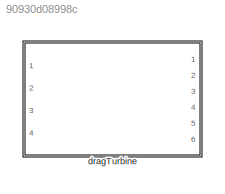
MODEL slx_90930d08998c
KIND library
CONFIG AbsTol = auto
CONFIG EnableMultiTasking = off
CONFIG FixedStep = auto
CONFIG MaxStep = auto
CONFIG MinStep = auto
CONFIG RelTol = 1e-3
CONFIG SampleTimeConstraint = Unconstrained
CONFIG SolverName = VariableStepAuto
CONFIG StartTime = 0.0
CONFIG StopTime = 10.0
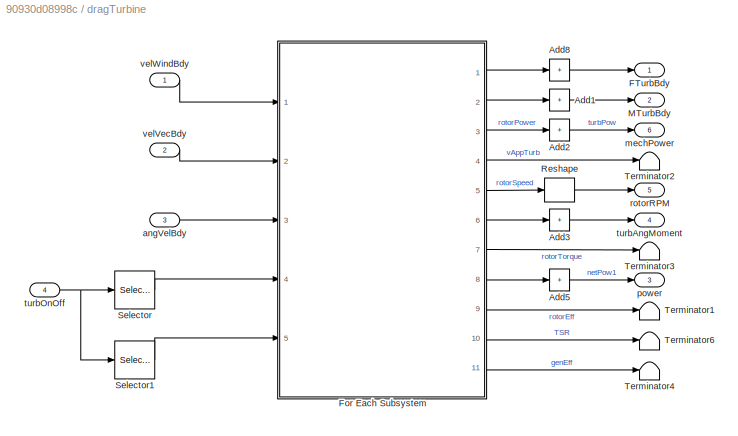
BLOCK [SubSystem] dragTurbine
  Ports = [4, 6]
  RequestExecContextInheritance = off
  TreatAsAtomicUnit = on
BLOCK [Sum] dragTurbine/Add1
  CollapseDim = 2
  CollapseMode = Specified dimension
  IconShape = rectangular
  Inputs = 1
  Ports = [1, 1]
BLOCK [Sum] dragTurbine/Add2
  CollapseDim = 2
  CollapseMode = Specified dimension
  IconShape = rectangular
  Inputs = 1
  Ports = [1, 1]
BLOCK [Sum] dragTurbine/Add3
  CollapseDim = 2
  CollapseMode = Specified dimension
  IconShape = rectangular
  Inputs = 1
  Ports = [1, 1]
BLOCK [Sum] dragTurbine/Add5
  CollapseDim = 2
  IconShape = rectangular
  Inputs = 1
  Ports = [1, 1]
BLOCK [Sum] dragTurbine/Add8
  CollapseDim = 2
  CollapseMode = Specified dimension
  IconShape = rectangular
  Inputs = 1
  Ports = [1, 1]
BLOCK [Outport] dragTurbine/FTurbBdy
  PortDimensions = [3,1]
  VectorParamsAs1DForOutWhenUnconnected = off
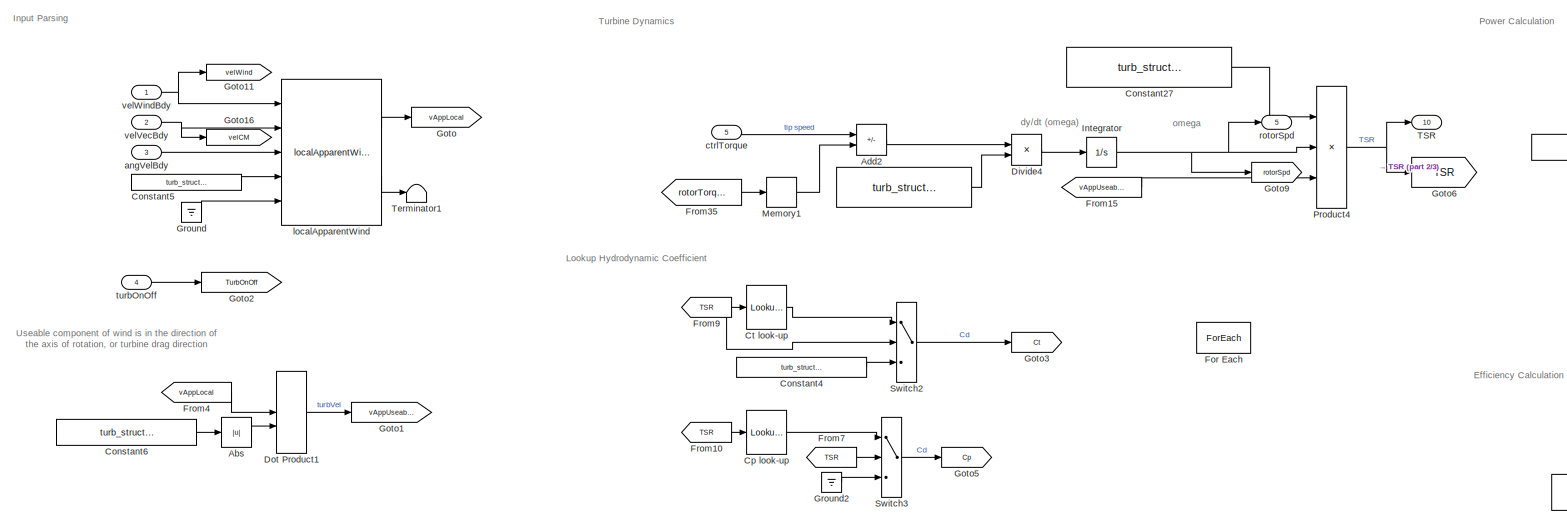
[diagram: dragTurbine/For Each Subsystem - part 1/3, top left region]
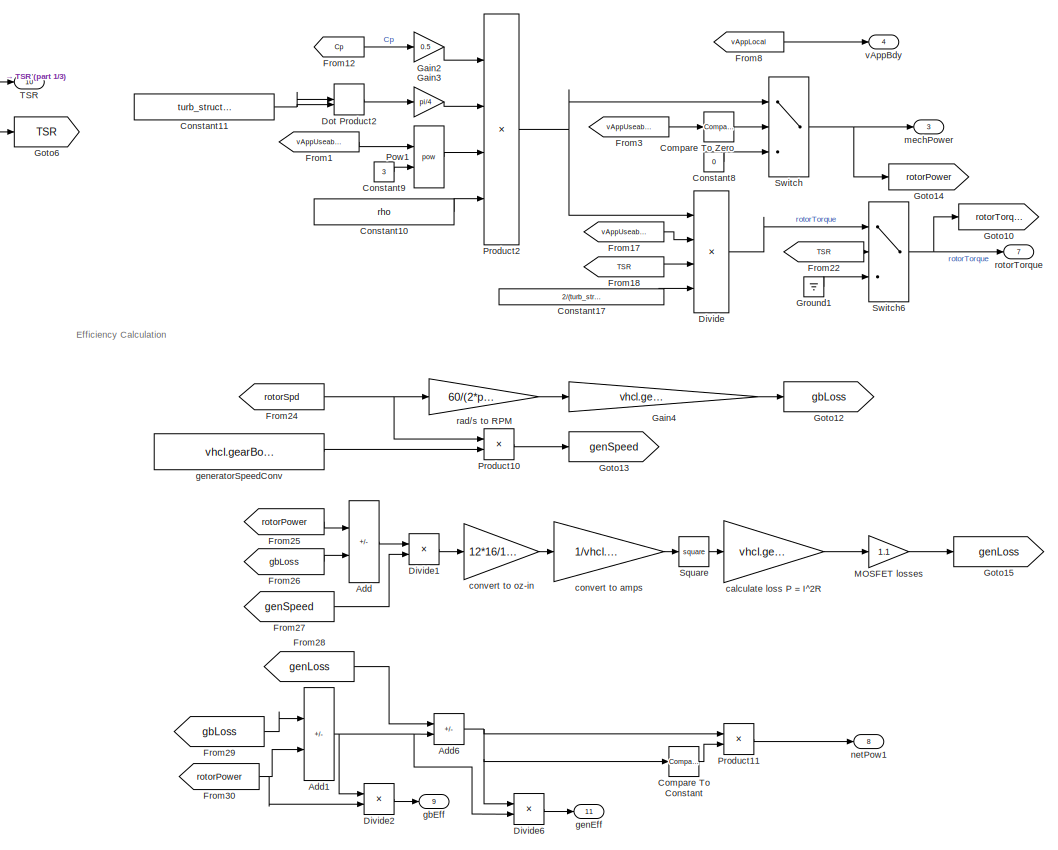
[diagram: dragTurbine/For Each Subsystem - part 2/3, right side, full height]
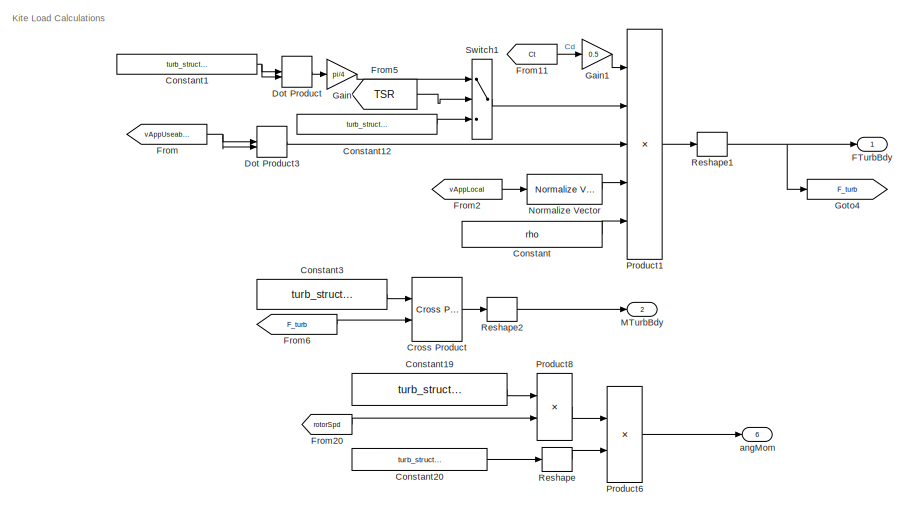
[diagram: dragTurbine/For Each Subsystem - part 3/3, bottom left region]
BLOCK [SubSystem] dragTurbine/For Each Subsystem
  MinAlgLoopOccurrences = on
  Ports = [5, 11]
  RequestExecContextInheritance = off
  TreatAsAtomicUnit = on
BLOCK [Constant] dragTurbine/For Each Subsystem/ 
  Value = turb_struct.momentOfInertia
BLOCK [Abs] dragTurbine/For Each Subsystem/Abs
  SaturateOnIntegerOverflow = off
BLOCK [Sum] dragTurbine/For Each Subsystem/Add
  IconShape = rectangular
  Inputs = +-
  Ports = [2, 1]
BLOCK [Sum] dragTurbine/For Each Subsystem/Add1
  IconShape = rectangular
  Inputs = -+
  Ports = [2, 1]
BLOCK [Sum] dragTurbine/For Each Subsystem/Add2
  IconShape = rectangular
  Inputs = -+
  Ports = [2, 1]
BLOCK [Sum] dragTurbine/For Each Subsystem/Add6
  IconShape = rectangular
  Inputs = -+
  Ports = [2, 1]
BLOCK [Reference] dragTurbine/For Each Subsystem/Compare To Constant  REF=simulink/Logic and Bit
Operations/Compare
To Constant
  Ports = [1, 1]
  SourceBlock = simulink/Logic and Bit\nOperations/Compare\nTo Constant
  SourceProductBaseCode = SL
  SourceType = Compare To Constant
BLOCK [Reference] dragTurbine/For Each Subsystem/Compare To Zero  REF=simulink/Logic and Bit
Operations/Compare
To Zero
  Ports = [1, 1]
  SourceBlock = simulink/Logic and Bit\nOperations/Compare\nTo Zero
  SourceProductBaseCode = SL
  SourceType = Compare To Zero
BLOCK [Constant] dragTurbine/For Each Subsystem/Constant
  Value = rho
BLOCK [Constant] dragTurbine/For Each Subsystem/Constant1
  Value = turb_struct.diameter
  VectorParams1D = off
BLOCK [Constant] dragTurbine/For Each Subsystem/Constant10
  Value = rho
BLOCK [Constant] dragTurbine/For Each Subsystem/Constant11
  Value = turb_struct.diameter
  VectorParams1D = off
BLOCK [Constant] dragTurbine/For Each Subsystem/Constant12
  Value = turb_struct.staticArea
  VectorParams1D = off
BLOCK [Constant] dragTurbine/For Each Subsystem/Constant17
  Value = 2/(turb_struct.diameter)
BLOCK [Constant] dragTurbine/For Each Subsystem/Constant19
  Value = turb_struct.momentOfInertia
BLOCK [Constant] dragTurbine/For Each Subsystem/Constant20
  Value = turb_struct.axisUnitVec
BLOCK [Constant] dragTurbine/For Each Subsystem/Constant27
  Value = turb_struct.diameter/2
BLOCK [Constant] dragTurbine/For Each Subsystem/Constant3
  Value = turb_struct.momentArm
BLOCK [Constant] dragTurbine/For Each Subsystem/Constant4
  Value = turb_struct.staticCD
BLOCK [Constant] dragTurbine/For Each Subsystem/Constant5
  Value = turb_struct.attachPtVec
BLOCK [Constant] dragTurbine/For Each Subsystem/Constant6
  Value = turb_struct.axisUnitVec
BLOCK [Constant] dragTurbine/For Each Subsystem/Constant8
  Value = 0
BLOCK [Constant] dragTurbine/For Each Subsystem/Constant9
  Value = 3
BLOCK [Lookup_n-D] dragTurbine/For Each Subsystem/Cp look-up
  BreakpointsForDimension1 = turb_struct.RPMref
  InputPortMap = u0
  InternalRulePriority = Speed
  NumberOfTableDimensions = 1
  Ports = [1, 1]
  RndMeth = Simplest
  Table = turb_struct.CpLookup
BLOCK [Reference] dragTurbine/For Each Subsystem/Cross Product  REF=vrlib/Utilities/Cross Product
  Ports = [2, 1]
  SourceBlock = vrlib/Utilities/Cross Product
  SourceProductBaseCode = SL
  SourceType = Cross Product
BLOCK [Lookup_n-D] dragTurbine/For Each Subsystem/Ct look-up
  BreakpointsForDimension1 = turb_struct.RPMref
  InputPortMap = u0
  InternalRulePriority = Speed
  NumberOfTableDimensions = 1
  Ports = [1, 1]
  RndMeth = Simplest
  Table = turb_struct.CtLookup
BLOCK [Product] dragTurbine/For Each Subsystem/Divide
  Inputs = *///
  Ports = [4, 1]
BLOCK [Product] dragTurbine/For Each Subsystem/Divide1
  Inputs = */
  Ports = [2, 1]
BLOCK [Product] dragTurbine/For Each Subsystem/Divide2
  Inputs = */
  Ports = [2, 1]
BLOCK [Product] dragTurbine/For Each Subsystem/Divide4
  Inputs = */
  Ports = [2, 1]
BLOCK [Product] dragTurbine/For Each Subsystem/Divide6
  Inputs = */
  Ports = [2, 1]
BLOCK [DotProduct] dragTurbine/For Each Subsystem/Dot Product
  OutDataTypeStr = Inherit: Inherit via internal rule
BLOCK [DotProduct] dragTurbine/For Each Subsystem/Dot Product1
  OutDataTypeStr = Inherit: Inherit via internal rule
BLOCK [DotProduct] dragTurbine/For Each Subsystem/Dot Product2
  OutDataTypeStr = Inherit: Inherit via internal rule
BLOCK [DotProduct] dragTurbine/For Each Subsystem/Dot Product3
  OutDataTypeStr = Inherit: Inherit via internal rule
BLOCK [Outport] dragTurbine/For Each Subsystem/FTurbBdy
  ConcatenationDimension = 2
  PortDimensions = [3,1]
  VectorParamsAs1DForOutWhenUnconnected = off
BLOCK [ForEach] dragTurbine/For Each Subsystem/For Each
  DisableCoverage = on
  IterateSubsysMaskParameter = off,on,off
  Ports = []
  SubsysMaskParameterIterationDimension = 1,2,1
  SubsysMaskParameterIterationStepSize = 1,1,1
BLOCK [From] dragTurbine/For Each Subsystem/From
  GotoTag = vAppUseable
BLOCK [From] dragTurbine/For Each Subsystem/From1
  GotoTag = vAppUseable
BLOCK [From] dragTurbine/For Each Subsystem/From10
  GotoTag = TSR
BLOCK [From] dragTurbine/For Each Subsystem/From11
  GotoTag = Ct
BLOCK [From] dragTurbine/For Each Subsystem/From12
  GotoTag = Cp
BLOCK [From] dragTurbine/For Each Subsystem/From15
  GotoTag = vAppUseable
BLOCK [From] dragTurbine/For Each Subsystem/From17
  GotoTag = vAppUseable
BLOCK [From] dragTurbine/For Each Subsystem/From18
  GotoTag = TSR
BLOCK [From] dragTurbine/For Each Subsystem/From2
  GotoTag = vAppLocal
BLOCK [From] dragTurbine/For Each Subsystem/From20
  GotoTag = rotorSpd
BLOCK [From] dragTurbine/For Each Subsystem/From22
  GotoTag = TSR
BLOCK [From] dragTurbine/For Each Subsystem/From24
  GotoTag = rotorSpd
BLOCK [From] dragTurbine/For Each Subsystem/From25
  GotoTag = rotorPower
BLOCK [From] dragTurbine/For Each Subsystem/From26
  GotoTag = gbLoss
BLOCK [From] dragTurbine/For Each Subsystem/From27
  GotoTag = genSpeed
BLOCK [From] dragTurbine/For Each Subsystem/From28
  GotoTag = genLoss
BLOCK [From] dragTurbine/For Each Subsystem/From29
  GotoTag = gbLoss
BLOCK [From] dragTurbine/For Each Subsystem/From3
  GotoTag = vAppUseable
BLOCK [From] dragTurbine/For Each Subsystem/From30
  GotoTag = rotorPower
BLOCK [From] dragTurbine/For Each Subsystem/From35
  GotoTag = rotorTorque
BLOCK [From] dragTurbine/For Each Subsystem/From4
  GotoTag = vAppLocal
BLOCK [From] dragTurbine/For Each Subsystem/From5
  GotoTag = TSR
BLOCK [From] dragTurbine/For Each Subsystem/From6
  GotoTag = F_turb
BLOCK [From] dragTurbine/For Each Subsystem/From7
  GotoTag = TSR
BLOCK [From] dragTurbine/For Each Subsystem/From8
  GotoTag = vAppLocal
BLOCK [From] dragTurbine/For Each Subsystem/From9
  GotoTag = TSR
BLOCK [Gain] dragTurbine/For Each Subsystem/Gain
  Gain = pi/4
BLOCK [Gain] dragTurbine/For Each Subsystem/Gain1
  Gain = 0.5
BLOCK [Gain] dragTurbine/For Each Subsystem/Gain2
  Gain = 0.5
BLOCK [Gain] dragTurbine/For Each Subsystem/Gain3
  Gain = pi/4
BLOCK [Gain] dragTurbine/For Each Subsystem/Gain4
  Gain = vhcl.gearBoxLoss.Value
BLOCK [Goto] dragTurbine/For Each Subsystem/Goto
  GotoTag = vAppLocal
BLOCK [Goto] dragTurbine/For Each Subsystem/Goto1
  GotoTag = vAppUseable
BLOCK [Goto] dragTurbine/For Each Subsystem/Goto10
  GotoTag = rotorTorque
BLOCK [Goto] dragTurbine/For Each Subsystem/Goto11
  Commented = on
  GotoTag = velWind
BLOCK [Goto] dragTurbine/For Each Subsystem/Goto12
  GotoTag = gbLoss
BLOCK [Goto] dragTurbine/For Each Subsystem/Goto13
  GotoTag = genSpeed
BLOCK [Goto] dragTurbine/For Each Subsystem/Goto14
  GotoTag = rotorPower
BLOCK [Goto] dragTurbine/For Each Subsystem/Goto15
  GotoTag = genLoss
BLOCK [Goto] dragTurbine/For Each Subsystem/Goto16
  Commented = on
  GotoTag = velCM
BLOCK [Goto] dragTurbine/For Each Subsystem/Goto2
  Commented = on
  GotoTag = TurbOnOff
BLOCK [Goto] dragTurbine/For Each Subsystem/Goto3
  GotoTag = Ct
BLOCK [Goto] dragTurbine/For Each Subsystem/Goto4
  GotoTag = F_turb
BLOCK [Goto] dragTurbine/For Each Subsystem/Goto5
  GotoTag = Cp
BLOCK [Goto] dragTurbine/For Each Subsystem/Goto6
  GotoTag = TSR
BLOCK [Goto] dragTurbine/For Each Subsystem/Goto9
  GotoTag = rotorSpd
BLOCK [Ground] dragTurbine/For Each Subsystem/Ground
BLOCK [Ground] dragTurbine/For Each Subsystem/Ground1
BLOCK [Ground] dragTurbine/For Each Subsystem/Ground2
BLOCK [Integrator] dragTurbine/For Each Subsystem/Integrator
  InitialCondition = turb_struct.optTSR*(-vhcl.initVelVecBdy.Value(1)+flwSpd)/(turb_struct.diameter/2)
  Ports = [1, 1]
BLOCK [Gain] dragTurbine/For Each Subsystem/MOSFET losses
  Gain = 1.1
BLOCK [Outport] dragTurbine/For Each Subsystem/MTurbBdy
  ConcatenationDimension = 2
  Port = 2
  PortDimensions = [3,1]
  VectorParamsAs1DForOutWhenUnconnected = off
BLOCK [Memory] dragTurbine/For Each Subsystem/Memory1
  InitialCondition = 10
BLOCK [Reference] dragTurbine/For Each Subsystem/Normalize Vector  REF=vrlib/Utilities/Normalize Vector
  Ports = [1, 1]
  SourceBlock = vrlib/Utilities/Normalize Vector
  SourceProductBaseCode = SL
  SourceType = Normalize Vector
BLOCK [Math] dragTurbine/For Each Subsystem/Pow1
  Operator = pow
  Ports = [2, 1]
  RndMeth = Zero
  SignedPower = on
BLOCK [Product] dragTurbine/For Each Subsystem/Product1
  Inputs = 5
  Ports = [5, 1]
BLOCK [Product] dragTurbine/For Each Subsystem/Product10
  Ports = [2, 1]
BLOCK [Product] dragTurbine/For Each Subsystem/Product11
  Ports = [2, 1]
BLOCK [Product] dragTurbine/For Each Subsystem/Product2
  Inputs = 4
  Ports = [4, 1]
BLOCK [Product] dragTurbine/For Each Subsystem/Product4
  Inputs = **/
  Ports = [3, 1]
BLOCK [Product] dragTurbine/For Each Subsystem/Product6
  Ports = [2, 1]
BLOCK [Product] dragTurbine/For Each Subsystem/Product8
  Ports = [2, 1]
BLOCK [Reshape] dragTurbine/For Each Subsystem/Reshape
  OutputDimensionality = Column vector (2-D)
  Ports = [1, 1]
BLOCK [Reshape] dragTurbine/For Each Subsystem/Reshape1
  OutputDimensionality = Column vector (2-D)
  Ports = [1, 1]
BLOCK [Reshape] dragTurbine/For Each Subsystem/Reshape2
  OutputDimensionality = Column vector (2-D)
  Ports = [1, 1]
BLOCK [Math] dragTurbine/For Each Subsystem/Square
  Operator = square
  Ports = [1, 1]
BLOCK [Switch] dragTurbine/For Each Subsystem/Switch
  Criteria = u2 > Threshold
  InputSameDT = off
  SaturateOnIntegerOverflow = off
BLOCK [Switch] dragTurbine/For Each Subsystem/Switch1
  Criteria = u2 > Threshold
  InputSameDT = off
  SaturateOnIntegerOverflow = off
  Threshold = 0.1
BLOCK [Switch] dragTurbine/For Each Subsystem/Switch2
  Criteria = u2 > Threshold
  InputSameDT = off
  SaturateOnIntegerOverflow = off
  Threshold = 0.15
BLOCK [Switch] dragTurbine/For Each Subsystem/Switch3
  Criteria = u2 > Threshold
  InputSameDT = off
  SaturateOnIntegerOverflow = off
BLOCK [Switch] dragTurbine/For Each Subsystem/Switch6
  Criteria = u2 > Threshold
  InputSameDT = off
  SaturateOnIntegerOverflow = off
  Threshold = 0.1
BLOCK [Outport] dragTurbine/For Each Subsystem/TSR
  ConcatenationDimension = 2
  Port = 10
BLOCK [Terminator] dragTurbine/For Each Subsystem/Terminator1
BLOCK [Outport] dragTurbine/For Each Subsystem/angMom
  ConcatenationDimension = 2
  Port = 6
BLOCK [Inport] dragTurbine/For Each Subsystem/angVelBdy
  Port = 3
BLOCK [Gain] dragTurbine/For Each Subsystem/calculate loss P = I^2R
  Gain = vhcl.genR.Value
BLOCK [Gain] dragTurbine/For Each Subsystem/convert to amps
  Gain = 1/vhcl.genKt.Value
BLOCK [Gain] dragTurbine/For Each Subsystem/convert to oz-in
  Gain = 12*16/1.3558
BLOCK [Inport] dragTurbine/For Each Subsystem/ctrlTorque
  Partition = on
  PartitionDimension = 1
  PartitionOffset = 0
  PartitionWidth = 1
  Port = 5
BLOCK [Outport] dragTurbine/For Each Subsystem/gbEff
  ConcatenationDimension = 2
  Port = 9
BLOCK [Outport] dragTurbine/For Each Subsystem/genEff
  ConcatenationDimension = 2
  Port = 11
BLOCK [Constant] dragTurbine/For Each Subsystem/generatorSpeedConv
  Value = vhcl.gearBoxRatio.Value
BLOCK [Reference] dragTurbine/For Each Subsystem/localApparentWind  REF=localApparentWind_ul/localApparentWind
  Ports = [5, 2]
  SourceBlock = localApparentWind_ul/localApparentWind
  SourceType = SubSystem
BLOCK [Outport] dragTurbine/For Each Subsystem/mechPower
  ConcatenationDimension = 2
  Port = 3
  PortDimensions = [1,1]
  VectorParamsAs1DForOutWhenUnconnected = off
BLOCK [Outport] dragTurbine/For Each Subsystem/netPow1
  ConcatenationDimension = 2
  Port = 8
BLOCK [Gain] dragTurbine/For Each Subsystem/rad//s to RPM
  Gain = 60/(2*pi)
BLOCK [Outport] dragTurbine/For Each Subsystem/rotorSpd
  ConcatenationDimension = 2
  Port = 5
BLOCK [Outport] dragTurbine/For Each Subsystem/rotorTorque
  ConcatenationDimension = 2
  Port = 7
BLOCK [Inport] dragTurbine/For Each Subsystem/turbOnOff
  Port = 4
BLOCK [Outport] dragTurbine/For Each Subsystem/vAppBdy
  ConcatenationDimension = 2
  Port = 4
  PortDimensions = [3,1]
  VectorParamsAs1DForOutWhenUnconnected = off
BLOCK [Inport] dragTurbine/For Each Subsystem/velVecBdy
  Port = 2
BLOCK [Inport] dragTurbine/For Each Subsystem/velWindBdy
  Partition = on
  PartitionDimension = 2
  PartitionOffset = 0
  PartitionWidth = 1
BLOCK [Outport] dragTurbine/MTurbBdy
  Port = 2
  PortDimensions = [3,1]
  VectorParamsAs1DForOutWhenUnconnected = off
BLOCK [Reshape] dragTurbine/Reshape
  OutputDimensionality = Column vector (2-D)
  Ports = [1, 1]
BLOCK [Selector] dragTurbine/Selector
  IndexOptions = Index vector (dialog)
  Indices = 1
  InputPortWidth = 1+vhcl.numTurbines.Value
  OutputSizes = 1
  Ports = [1, 1]
BLOCK [Selector] dragTurbine/Selector1
  IndexOptions = Starting index (dialog)
  Indices = 2
  InputPortWidth = 1+vhcl.numTurbines.Value
  OutputSizes = vhcl.numTurbines.Value
  Ports = [1, 1]
BLOCK [Terminator] dragTurbine/Terminator1
BLOCK [Terminator] dragTurbine/Terminator2
BLOCK [Terminator] dragTurbine/Terminator3
BLOCK [Terminator] dragTurbine/Terminator4
BLOCK [Terminator] dragTurbine/Terminator6
BLOCK [Inport] dragTurbine/angVelBdy
  Port = 3
BLOCK [Outport] dragTurbine/mechPower
  Port = 6
BLOCK [Outport] dragTurbine/power
  Port = 3
  PortDimensions = [1,1]
  VectorParamsAs1DForOutWhenUnconnected = off
BLOCK [Outport] dragTurbine/rotorRPM
  Port = 5
  VectorParamsAs1DForOutWhenUnconnected = off
BLOCK [Outport] dragTurbine/turbAngMoment
  Port = 4
  PortDimensions = [3,1]
  VectorParamsAs1DForOutWhenUnconnected = off
BLOCK [Inport] dragTurbine/turbOnOff
  Port = 4
BLOCK [Inport] dragTurbine/velVecBdy
  Port = 2
BLOCK [Inport] dragTurbine/velWindBdy
ANNOTATION dragTurbine/For Each Subsystem: Efficiency Calculation
ANNOTATION dragTurbine/For Each Subsystem: Input Parsing
ANNOTATION dragTurbine/For Each Subsystem: Kite Load Calculations
ANNOTATION dragTurbine/For Each Subsystem: Lookup Hydrodynamic Coefficient
ANNOTATION dragTurbine/For Each Subsystem: Power Calculation
ANNOTATION dragTurbine/For Each Subsystem: Turbine Dynamics
ANNOTATION dragTurbine/For Each Subsystem: Useable component of wind is in the direction of the axis of rotation, or turbine drag direction
ANNOTATION dragTurbine/For Each Subsystem: dy/dt (omega)
ANNOTATION dragTurbine/For Each Subsystem: omega
LINE dragTurbine/Add1:1 -> dragTurbine/MTurbBdy:1
LINE dragTurbine/Add2:1 -> dragTurbine/mechPower:1
LINE dragTurbine/Add3:1 -> dragTurbine/turbAngMoment:1
LINE dragTurbine/Add5:1 -> dragTurbine/power:1
LINE dragTurbine/Add8:1 -> dragTurbine/FTurbBdy:1
LINE dragTurbine/For Each Subsystem/ :1 -> dragTurbine/For Each Subsystem/Divide4:2
LINE dragTurbine/For Each Subsystem/Abs:1 -> dragTurbine/For Each Subsystem/Dot Product1:2
NET dragTurbine/For Each Subsystem/Add1:1 -> dragTurbine/For Each Subsystem/Add6:2, dragTurbine/For Each Subsystem/Divide2:1, dragTurbine/For Each Subsystem/Divide6:2
LINE dragTurbine/For Each Subsystem/Add2:1 -> dragTurbine/For Each Subsystem/Divide4:1
NET dragTurbine/For Each Subsystem/Add6:1 -> dragTurbine/For Each Subsystem/Compare To Constant:1, dragTurbine/For Each Subsystem/Divide6:1, dragTurbine/For Each Subsystem/Product11:1
LINE dragTurbine/For Each Subsystem/Add:1 -> dragTurbine/For Each Subsystem/Divide1:1
LINE dragTurbine/For Each Subsystem/Compare To Constant:1 -> dragTurbine/For Each Subsystem/Product11:2
LINE dragTurbine/For Each Subsystem/Compare To Zero:1 -> dragTurbine/For Each Subsystem/Switch:2
LINE dragTurbine/For Each Subsystem/Constant10:1 -> dragTurbine/For Each Subsystem/Product2:4
NET dragTurbine/For Each Subsystem/Constant11:1 -> dragTurbine/For Each Subsystem/Dot Product2:1, dragTurbine/For Each Subsystem/Dot Product2:2
LINE dragTurbine/For Each Subsystem/Constant12:1 -> dragTurbine/For Each Subsystem/Switch1:3
LINE dragTurbine/For Each Subsystem/Constant17:1 -> dragTurbine/For Each Subsystem/Divide:4
LINE dragTurbine/For Each Subsystem/Constant19:1 -> dragTurbine/For Each Subsystem/Product8:1
NET dragTurbine/For Each Subsystem/Constant1:1 -> dragTurbine/For Each Subsystem/Dot Product:1, dragTurbine/For Each Subsystem/Dot Product:2
LINE dragTurbine/For Each Subsystem/Constant20:1 -> dragTurbine/For Each Subsystem/Reshape:1
LINE dragTurbine/For Each Subsystem/Constant27:1 -> dragTurbine/For Each Subsystem/Product4:1
LINE dragTurbine/For Each Subsystem/Constant3:1 -> dragTurbine/For Each Subsystem/Cross Product:1
LINE dragTurbine/For Each Subsystem/Constant4:1 -> dragTurbine/For Each Subsystem/Switch2:3
LINE dragTurbine/For Each Subsystem/Constant5:1 -> dragTurbine/For Each Subsystem/localApparentWind:4
LINE dragTurbine/For Each Subsystem/Constant6:1 -> dragTurbine/For Each Subsystem/Abs:1
LINE dragTurbine/For Each Subsystem/Constant8:1 -> dragTurbine/For Each Subsystem/Switch:3
LINE dragTurbine/For Each Subsystem/Constant9:1 -> dragTurbine/For Each Subsystem/Pow1:2
LINE dragTurbine/For Each Subsystem/Constant:1 -> dragTurbine/For Each Subsystem/Product1:5
LINE dragTurbine/For Each Subsystem/Cp look-up:1 -> dragTurbine/For Each Subsystem/Switch3:1
LINE dragTurbine/For Each Subsystem/Cross Product:1 -> dragTurbine/For Each Subsystem/Reshape2:1
LINE dragTurbine/For Each Subsystem/Ct look-up:1 -> dragTurbine/For Each Subsystem/Switch2:1
LINE dragTurbine/For Each Subsystem/Divide1:1 -> dragTurbine/For Each Subsystem/convert to oz-in:1
LINE dragTurbine/For Each Subsystem/Divide2:1 -> dragTurbine/For Each Subsystem/gbEff:1
LINE dragTurbine/For Each Subsystem/Divide4:1 -> dragTurbine/For Each Subsystem/Integrator:1
LINE dragTurbine/For Each Subsystem/Divide6:1 -> dragTurbine/For Each Subsystem/genEff:1
LINE dragTurbine/For Each Subsystem/Divide:1 -> dragTurbine/For Each Subsystem/Switch6:1
LINE dragTurbine/For Each Subsystem/Dot Product1:1 -> dragTurbine/For Each Subsystem/Goto1:1
LINE dragTurbine/For Each Subsystem/Dot Product2:1 -> dragTurbine/For Each Subsystem/Gain3:1
LINE dragTurbine/For Each Subsystem/Dot Product3:1 -> dragTurbine/For Each Subsystem/Product1:3
LINE dragTurbine/For Each Subsystem/Dot Product:1 -> dragTurbine/For Each Subsystem/Gain:1
LINE dragTurbine/For Each Subsystem/From10:1 -> dragTurbine/For Each Subsystem/Cp look-up:1
LINE dragTurbine/For Each Subsystem/From11:1 -> dragTurbine/For Each Subsystem/Gain1:1
LINE dragTurbine/For Each Subsystem/From12:1 -> dragTurbine/For Each Subsystem/Gain2:1
LINE dragTurbine/For Each Subsystem/From15:1 -> dragTurbine/For Each Subsystem/Product4:3
LINE dragTurbine/For Each Subsystem/From17:1 -> dragTurbine/For Each Subsystem/Divide:2
LINE dragTurbine/For Each Subsystem/From18:1 -> dragTurbine/For Each Subsystem/Divide:3
LINE dragTurbine/For Each Subsystem/From1:1 -> dragTurbine/For Each Subsystem/Pow1:1
LINE dragTurbine/For Each Subsystem/From20:1 -> dragTurbine/For Each Subsystem/Product8:2
LINE dragTurbine/For Each Subsystem/From22:1 -> dragTurbine/For Each Subsystem/Switch6:2
NET dragTurbine/For Each Subsystem/From24:1 -> dragTurbine/For Each Subsystem/Product10:1, dragTurbine/For Each Subsystem/rad//s to RPM:1
LINE dragTurbine/For Each Subsystem/From25:1 -> dragTurbine/For Each Subsystem/Add:1
LINE dragTurbine/For Each Subsystem/From26:1 -> dragTurbine/For Each Subsystem/Add:2
LINE dragTurbine/For Each Subsystem/From27:1 -> dragTurbine/For Each Subsystem/Divide1:2
LINE dragTurbine/For Each Subsystem/From28:1 -> dragTurbine/For Each Subsystem/Add6:1
LINE dragTurbine/For Each Subsystem/From29:1 -> dragTurbine/For Each Subsystem/Add1:1
LINE dragTurbine/For Each Subsystem/From2:1 -> dragTurbine/For Each Subsystem/Normalize Vector:1
NET dragTurbine/For Each Subsystem/From30:1 -> dragTurbine/For Each Subsystem/Add1:2, dragTurbine/For Each Subsystem/Divide2:2
LINE dragTurbine/For Each Subsystem/From35:1 -> dragTurbine/For Each Subsystem/Memory1:1
LINE dragTurbine/For Each Subsystem/From3:1 -> dragTurbine/For Each Subsystem/Compare To Zero:1
LINE dragTurbine/For Each Subsystem/From4:1 -> dragTurbine/For Each Subsystem/Dot Product1:1
LINE dragTurbine/For Each Subsystem/From5:1 -> dragTurbine/For Each Subsystem/Switch1:2
LINE dragTurbine/For Each Subsystem/From6:1 -> dragTurbine/For Each Subsystem/Cross Product:2
LINE dragTurbine/For Each Subsystem/From7:1 -> dragTurbine/For Each Subsystem/Switch3:2
LINE dragTurbine/For Each Subsystem/From8:1 -> dragTurbine/For Each Subsystem/vAppBdy:1
NET dragTurbine/For Each Subsystem/From9:1 -> dragTurbine/For Each Subsystem/Ct look-up:1, dragTurbine/For Each Subsystem/Switch2:2
NET dragTurbine/For Each Subsystem/From:1 -> dragTurbine/For Each Subsystem/Dot Product3:1, dragTurbine/For Each Subsystem/Dot Product3:2
LINE dragTurbine/For Each Subsystem/Gain1:1 -> dragTurbine/For Each Subsystem/Product1:1
LINE dragTurbine/For Each Subsystem/Gain2:1 -> dragTurbine/For Each Subsystem/Product2:1
LINE dragTurbine/For Each Subsystem/Gain3:1 -> dragTurbine/For Each Subsystem/Product2:2
LINE dragTurbine/For Each Subsystem/Gain4:1 -> dragTurbine/For Each Subsystem/Goto12:1
LINE dragTurbine/For Each Subsystem/Gain:1 -> dragTurbine/For Each Subsystem/Switch1:1
LINE dragTurbine/For Each Subsystem/Ground1:1 -> dragTurbine/For Each Subsystem/Switch6:3
LINE dragTurbine/For Each Subsystem/Ground2:1 -> dragTurbine/For Each Subsystem/Switch3:3
LINE dragTurbine/For Each Subsystem/Ground:1 -> dragTurbine/For Each Subsystem/localApparentWind:5
NET dragTurbine/For Each Subsystem/Integrator:1 -> dragTurbine/For Each Subsystem/Goto9:1, dragTurbine/For Each Subsystem/Product4:2, dragTurbine/For Each Subsystem/rotorSpd:1
LINE dragTurbine/For Each Subsystem/MOSFET losses:1 -> dragTurbine/For Each Subsystem/Goto15:1
LINE dragTurbine/For Each Subsystem/Memory1:1 -> dragTurbine/For Each Subsystem/Add2:2
LINE dragTurbine/For Each Subsystem/Normalize Vector:1 -> dragTurbine/For Each Subsystem/Product1:4
LINE dragTurbine/For Each Subsystem/Pow1:1 -> dragTurbine/For Each Subsystem/Product2:3
LINE dragTurbine/For Each Subsystem/Product10:1 -> dragTurbine/For Each Subsystem/Goto13:1
LINE dragTurbine/For Each Subsystem/Product11:1 -> dragTurbine/For Each Subsystem/netPow1:1
LINE dragTurbine/For Each Subsystem/Product1:1 -> dragTurbine/For Each Subsystem/Reshape1:1
NET dragTurbine/For Each Subsystem/Product2:1 -> dragTurbine/For Each Subsystem/Divide:1, dragTurbine/For Each Subsystem/Switch:1
NET dragTurbine/For Each Subsystem/Product4:1 -> dragTurbine/For Each Subsystem/Goto6:1, dragTurbine/For Each Subsystem/TSR:1
LINE dragTurbine/For Each Subsystem/Product6:1 -> dragTurbine/For Each Subsystem/angMom:1
LINE dragTurbine/For Each Subsystem/Product8:1 -> dragTurbine/For Each Subsystem/Product6:1
NET dragTurbine/For Each Subsystem/Reshape1:1 -> dragTurbine/For Each Subsystem/FTurbBdy:1, dragTurbine/For Each Subsystem/Goto4:1
LINE dragTurbine/For Each Subsystem/Reshape2:1 -> dragTurbine/For Each Subsystem/MTurbBdy:1
LINE dragTurbine/For Each Subsystem/Reshape:1 -> dragTurbine/For Each Subsystem/Product6:2
LINE dragTurbine/For Each Subsystem/Square:1 -> dragTurbine/For Each Subsystem/calculate loss P = I^2R:1
LINE dragTurbine/For Each Subsystem/Switch1:1 -> dragTurbine/For Each Subsystem/Product1:2
LINE dragTurbine/For Each Subsystem/Switch2:1 -> dragTurbine/For Each Subsystem/Goto3:1
LINE dragTurbine/For Each Subsystem/Switch3:1 -> dragTurbine/For Each Subsystem/Goto5:1
NET dragTurbine/For Each Subsystem/Switch6:1 -> dragTurbine/For Each Subsystem/Goto10:1, dragTurbine/For Each Subsystem/rotorTorque:1
NET dragTurbine/For Each Subsystem/Switch:1 -> dragTurbine/For Each Subsystem/Goto14:1, dragTurbine/For Each Subsystem/mechPower:1
LINE dragTurbine/For Each Subsystem/angVelBdy:1 -> dragTurbine/For Each Subsystem/localApparentWind:3
LINE dragTurbine/For Each Subsystem/calculate loss P = I^2R:1 -> dragTurbine/For Each Subsystem/MOSFET losses:1
LINE dragTurbine/For Each Subsystem/convert to amps:1 -> dragTurbine/For Each Subsystem/Square:1
LINE dragTurbine/For Each Subsystem/convert to oz-in:1 -> dragTurbine/For Each Subsystem/convert to amps:1
LINE dragTurbine/For Each Subsystem/ctrlTorque:1 -> dragTurbine/For Each Subsystem/Add2:1
LINE dragTurbine/For Each Subsystem/generatorSpeedConv:1 -> dragTurbine/For Each Subsystem/Product10:2
LINE dragTurbine/For Each Subsystem/localApparentWind:1 -> dragTurbine/For Each Subsystem/Goto:1
LINE dragTurbine/For Each Subsystem/localApparentWind:2 -> dragTurbine/For Each Subsystem/Terminator1:1
LINE dragTurbine/For Each Subsystem/rad//s to RPM:1 -> dragTurbine/For Each Subsystem/Gain4:1
LINE dragTurbine/For Each Subsystem/turbOnOff:1 -> dragTurbine/For Each Subsystem/Goto2:1
NET dragTurbine/For Each Subsystem/velVecBdy:1 -> dragTurbine/For Each Subsystem/Goto16:1, dragTurbine/For Each Subsystem/localApparentWind:2
NET dragTurbine/For Each Subsystem/velWindBdy:1 -> dragTurbine/For Each Subsystem/Goto11:1, dragTurbine/For Each Subsystem/localApparentWind:1
LINE dragTurbine/For Each Subsystem:1 -> dragTurbine/Add8:1
LINE dragTurbine/For Each Subsystem:10 -> dragTurbine/Terminator6:1
LINE dragTurbine/For Each Subsystem:11 -> dragTurbine/Terminator4:1
LINE dragTurbine/For Each Subsystem:2 -> dragTurbine/Add1:1
LINE dragTurbine/For Each Subsystem:3 -> dragTurbine/Add2:1
LINE dragTurbine/For Each Subsystem:4 -> dragTurbine/Terminator2:1
LINE dragTurbine/For Each Subsystem:5 -> dragTurbine/Reshape:1
LINE dragTurbine/For Each Subsystem:6 -> dragTurbine/Add3:1
LINE dragTurbine/For Each Subsystem:7 -> dragTurbine/Terminator3:1
LINE dragTurbine/For Each Subsystem:8 -> dragTurbine/Add5:1
LINE dragTurbine/For Each Subsystem:9 -> dragTurbine/Terminator1:1
LINE dragTurbine/Reshape:1 -> dragTurbine/rotorRPM:1
LINE dragTurbine/Selector1:1 -> dragTurbine/For Each Subsystem:5
LINE dragTurbine/Selector:1 -> dragTurbine/For Each Subsystem:4
LINE dragTurbine/angVelBdy:1 -> dragTurbine/For Each Subsystem:3
NET dragTurbine/turbOnOff:1 -> dragTurbine/Selector1:1, dragTurbine/Selector:1
LINE dragTurbine/velVecBdy:1 -> dragTurbine/For Each Subsystem:2
LINE dragTurbine/velWindBdy:1 -> dragTurbine/For Each Subsystem:1
note: NET lines group one-source signal fan-out (src -> all destinations, sorted); 1:1 wires keep LINE
